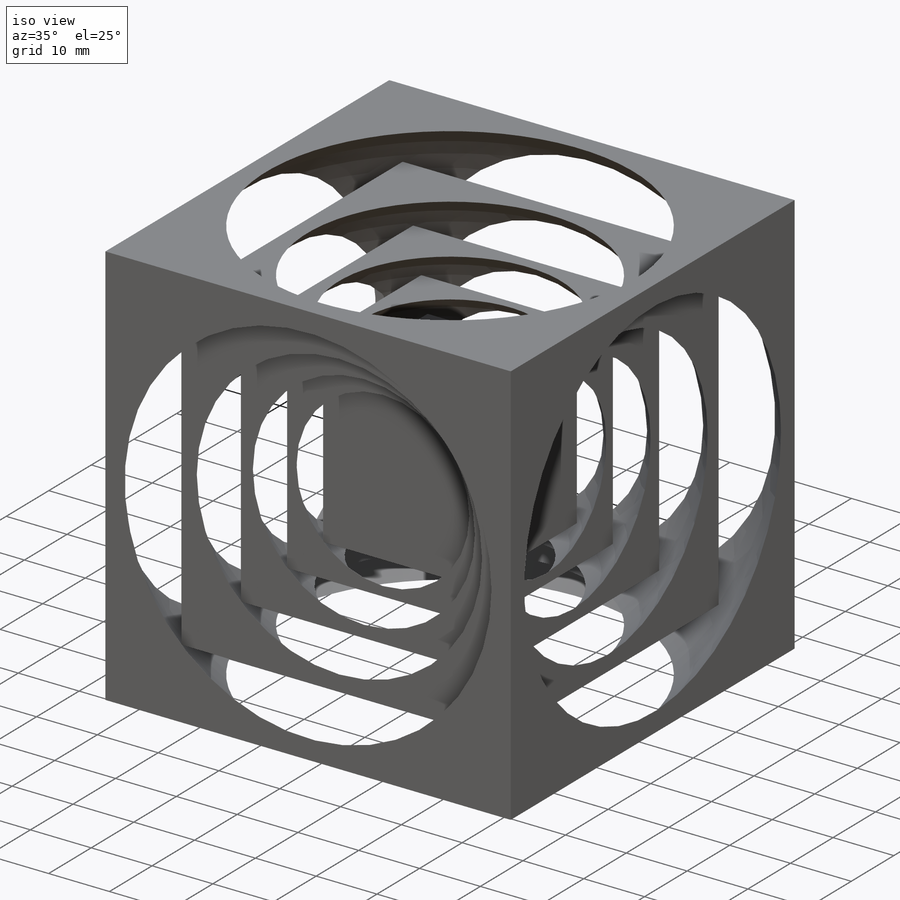
[diagram: iso view]
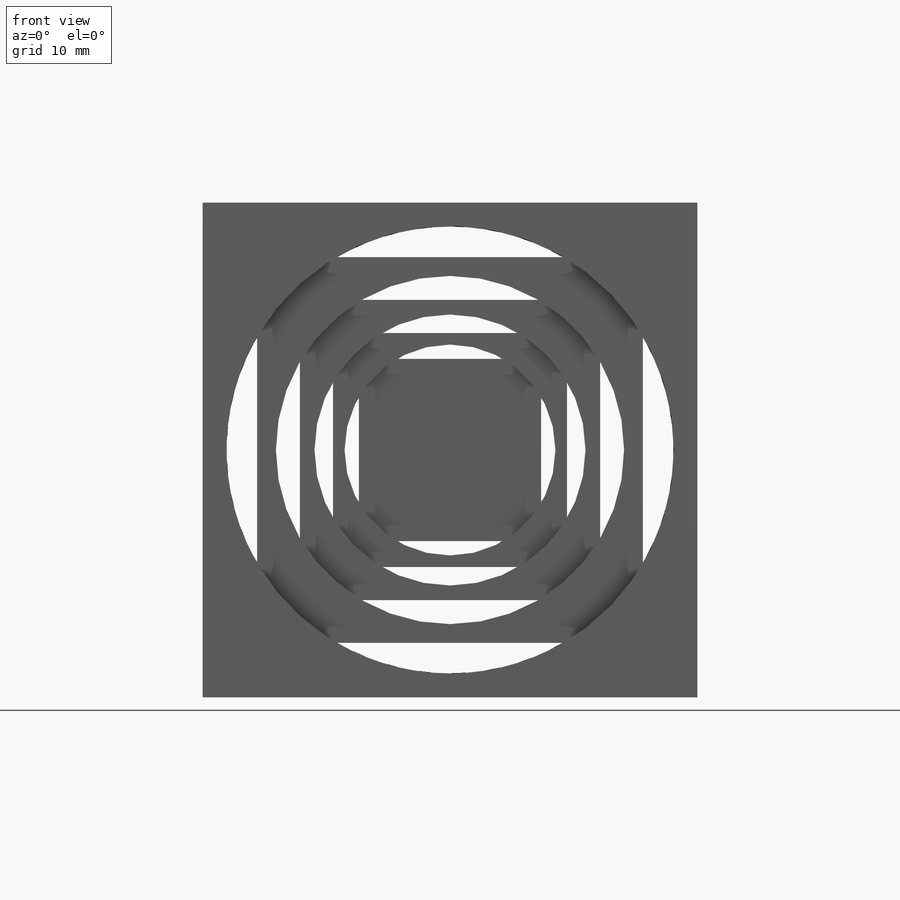
[diagram: front view]
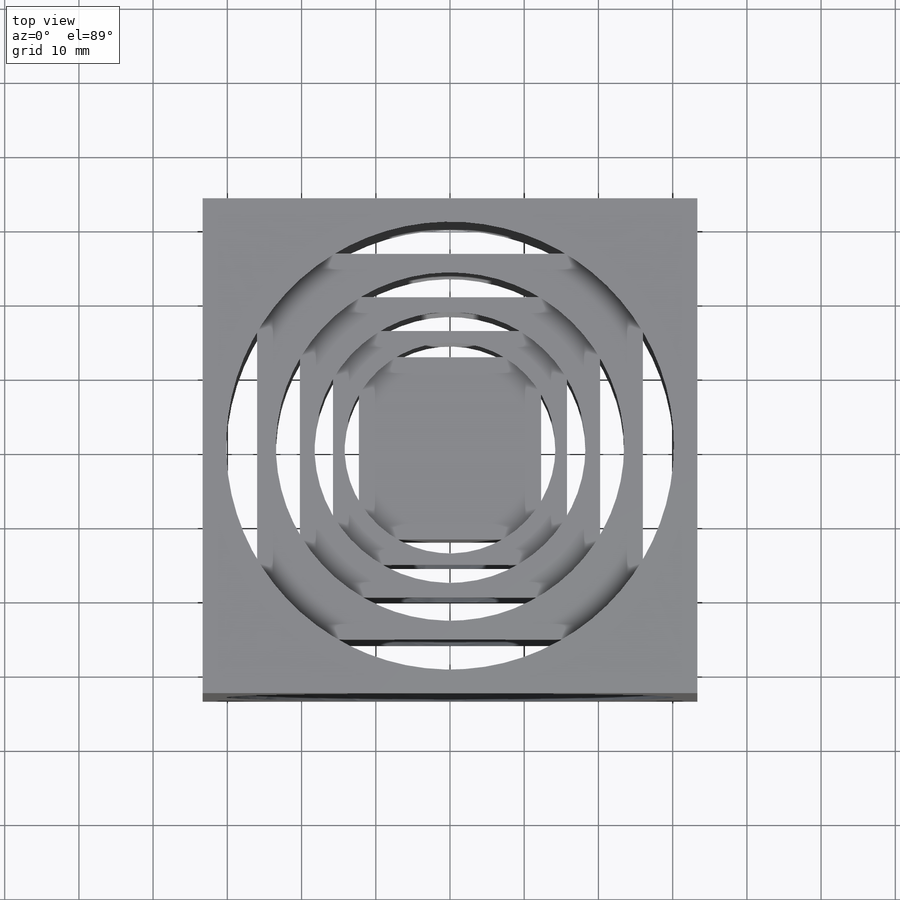
[diagram: top view]
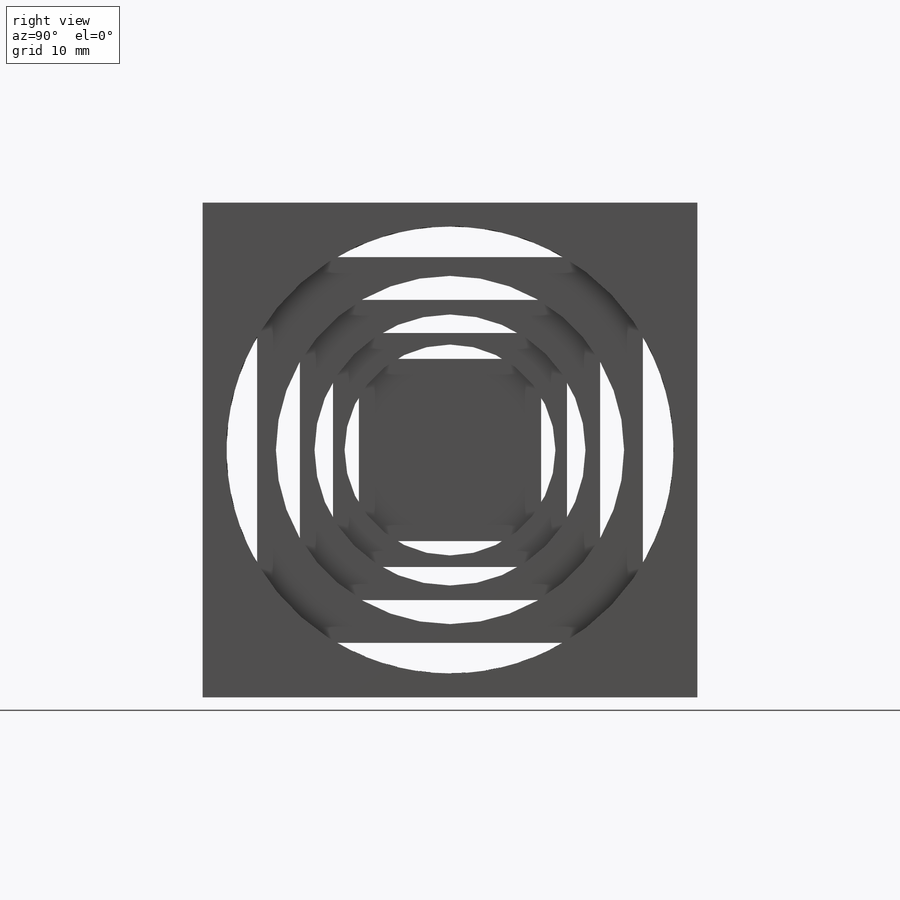
[diagram: right view]
SOLIDWORKS PART (.sldprt)
format: sldprt  version: not decoded by parser v0  size: 377,344 bytes
history: native  units: mm
features: sketch x9, extrude x5, cut_revolve x4, plane x4, material x1 (+16 scaffold rows collapsed)
feature tree (39):
  scaffold x16  (default folders/planes/origin — collapsed)
  material  "Material <not specified>"
  sketch  "Sketch1"  dims[D1=33.3375mm D2=33.3375mm]
  extrude  "Extrude1"  Depth=33.3375mm
  sketch  "Sketch2"  dims[D1=~89.914984mm]
  cut_revolve  "Cut-Revolve1"  Angle=360deg
  plane  "Plane1"  Offset=25.98166mm
  sketch  "Sketch3"  dims[D1=~25.98166mm D2=~25.98166mm]
  extrude  "Extrude2"  Depth=51.96332mm
  sketch  "Sketch5"  dims[D1=~35.003232mm]
  cut_revolve  "Cut-Revolve2"  Angle=360deg
  plane  "Plane2"  Offset=20.234529mm
  plane  "Plane3"  Offset=15.759963mm
  plane  "Plane4"  Offset=12.276125mm
  sketch  "Sketch6"  dims[D1=~20.234529mm D2=~20.234529mm]
  extrude  "Extrude3"  Depth=40.469058mm
  sketch  "Sketch7"  dims[D1=~27.253184mm]
  cut_revolve  "Cut-Revolve3"  Angle=360deg
  sketch  "Sketch9"  dims[D1=~15.759963mm D2=~15.759963mm]
  extrude  "Extrude4"  Depth=31.519927mm
  sketch  "Sketch10"  dims[D1=~21.218881mm]
  cut_revolve  "Cut-Revolve4"  Angle=360deg
  sketch  "Sketch11"  dims[D1=~12.276125mm D2=~12.276125mm]
  extrude  "Extrude5"  Depth=24.55225mm
decode coverage: 18 of 18 modeling features carry decoded parameters
note: ~ marks probable driven/reference dimensions
note: suppression state not decoded; provenance and decode notes live in map.json
